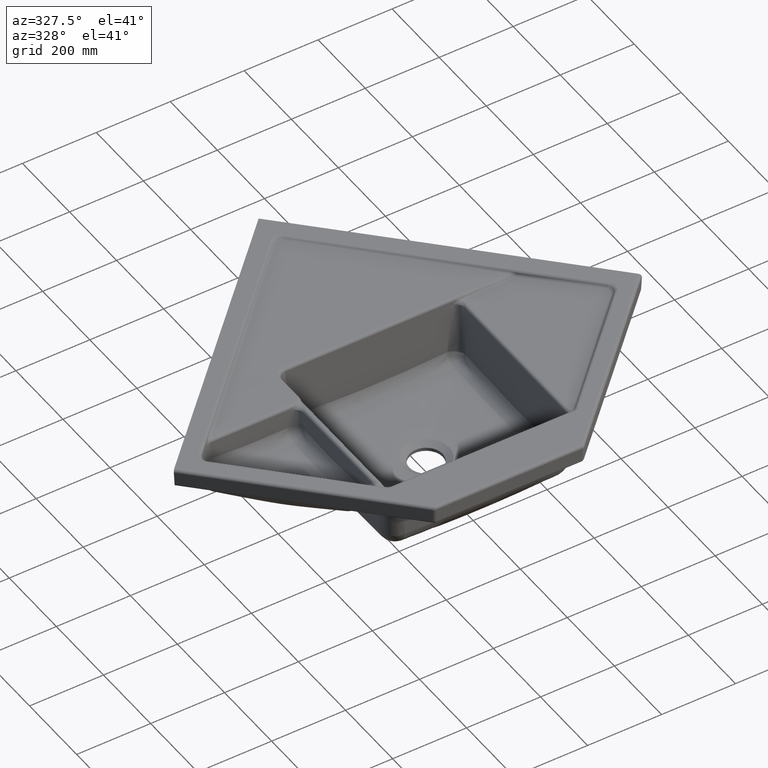
[diagram: clean part render]
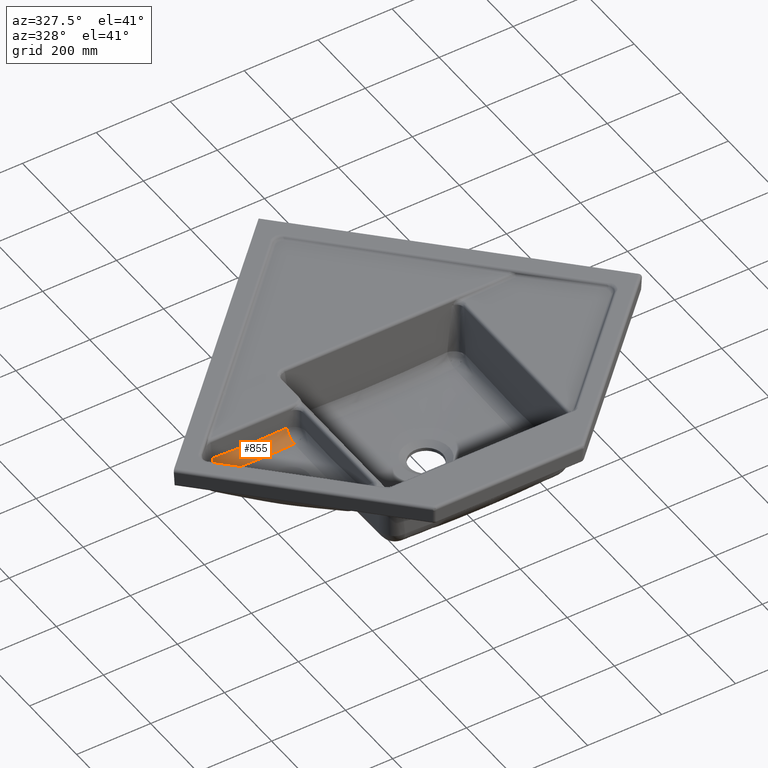
[diagram: same view with one face highlighted and labeled with its STEP entity id]
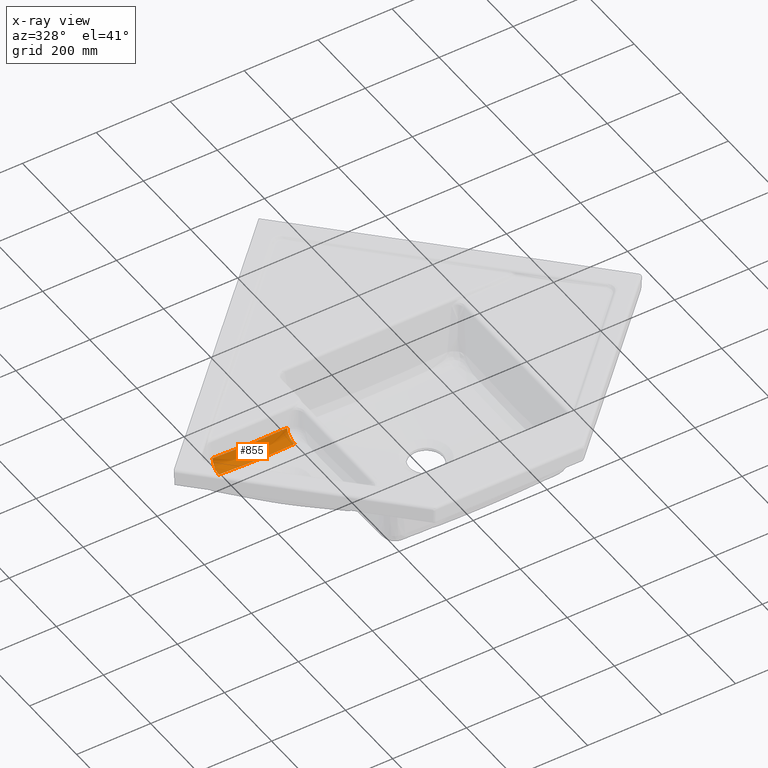
[diagram: x-ray of the same camera — body ghosted, the highlighted face saturated]
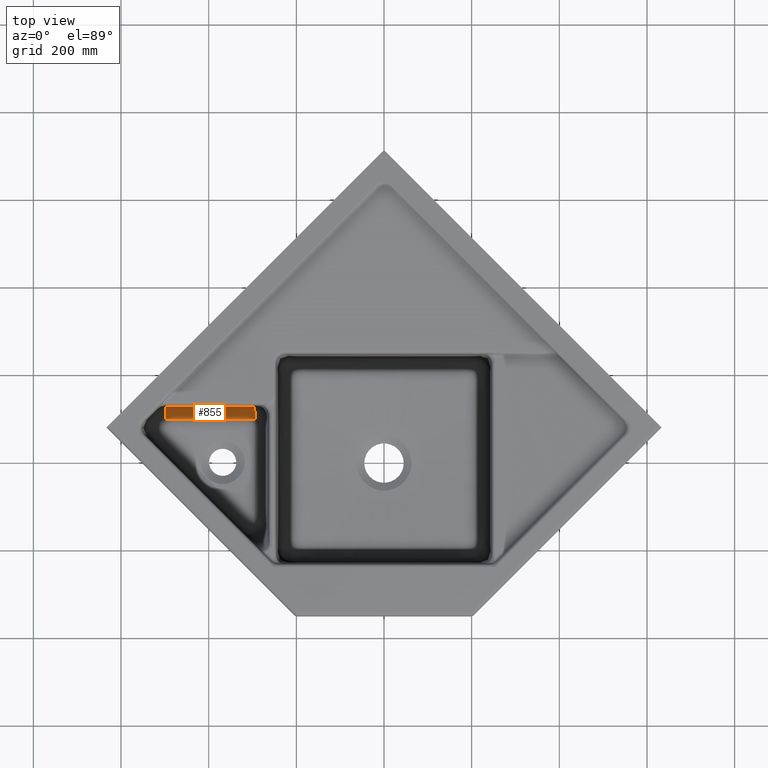
[diagram: same view with one face highlighted and labeled with its STEP entity id]
A machine part, auxiliary view. The second image highlights one B-rep face of the part: STEP entity #855.
The next image is the same camera in x-ray: the body ghosted, the highlighted face saturated — about 0% of this face is hidden behind the body in this view.
A second angle (top view) of the same face is appended — the face is thin or edge-on in the first view.
In plain terms, the highlighted face is a freeform B-spline surface patch.
Its self-contained STEP definition (entity closure, byte-faithful):
#855=ADVANCED_FACE('',(#1428),#1099,.F.);
#1099=(
BOUNDED_SURFACE()
B_SPLINE_SURFACE(3,2,((#34957,#34958,#34959),(#34960,#34961,#34962),(#34963,
#34964,#34965),(#34966,#34967,#34968),(#34969,#34970,#34971),(#34972,#34973,
#34974),(#34975,#34976,#34977),(#34978,#34979,#34980),(#34981,#34982,#34983),
(#34984,#34985,#34986),(#34987,#34988,#34989),(#34990,#34991,#34992)),
 .UNSPECIFIED.,.F.,.F.,.F.)
B_SPLINE_SURFACE_WITH_KNOTS((4,2,2,2,2,4),(3,3),(0.,0.25,0.375,0.5,0.75,
1.),(0.,1.),.UNSPECIFIED.)
GEOMETRIC_REPRESENTATION_ITEM()
RATIONAL_B_SPLINE_SURFACE(((1.,0.744119119800803,1.),(1.,0.745678358849743,
1.),(1.,0.747413035936206,1.),(1.,0.74877105718162,1.),(1.,0.749001886722056,
1.),(1.,0.748893356631566,1.),(1.,0.748555685656762,1.),(1.,0.746960610311758,
1.),(1.,0.745213075806759,1.),(1.,0.742082458033572,1.),(1.,0.740649148031611,
1.),(1.,0.739483774755505,1.)))
REPRESENTATION_ITEM('')
SURFACE()
);
#1428=FACE_OUTER_BOUND('',#1828,.T.);
#1828=EDGE_LOOP('',(#3407,#3408,#3409,#3410));
#3407=ORIENTED_EDGE('',*,*,#5166,.T.);
#3408=ORIENTED_EDGE('',*,*,#5140,.F.);
#3409=ORIENTED_EDGE('',*,*,#5136,.F.);
#3410=ORIENTED_EDGE('',*,*,#5167,.F.);
#4357=VERTEX_POINT('',#29791);
#4364=VERTEX_POINT('',#30026);
#4366=VERTEX_POINT('',#30039);
#4384=VERTEX_POINT('',#34904);
#5136=EDGE_CURVE('',#4357,#4364,#5719,.T.);
#5140=EDGE_CURVE('',#4364,#4366,#5723,.T.);
#5166=EDGE_CURVE('',#4384,#4366,#5742,.T.);
#5167=EDGE_CURVE('',#4384,#4357,#5743,.T.);
#5719=B_SPLINE_CURVE_WITH_KNOTS('',3,(#29964,#29965,#29966,#29967,#29968,
#29969,#29970,#29971,#29972,#29973,#29974,#29975,#29976,#29977,#29978,#29979,
#29980,#29981,#29982,#29983,#29984,#29985,#29986,#29987,#29988,#29989,#29990,
#29991,#29992,#29993,#29994,#29995,#29996,#29997,#29998,#29999,#30000,#30001,
#30002,#30003,#30004,#30005,#30006,#30007,#30008,#30009,#30010,#30011,#30012,
#30013,#30014,#30015,#30016,#30017,#30018,#30019,#30020,#30021,#30022,#30023,
#30024,#30025),.UNSPECIFIED.,.F.,.F.,(4,2,2,2,2,2,2,2,2,2,2,2,2,2,2,2,2,
2,2,2,2,2,2,2,2,2,2,2,2,2,4),(0.,0.0624999999999958,0.0937499999999937,
0.109374999999993,0.117187499999992,0.124999999999992,0.187499999999989,
0.218749999999987,0.234374999999987,0.249999999999986,0.374999999999985,
0.437499999999985,0.468749999999984,0.484374999999983,0.499999999999983,
0.562499999999984,0.593749999999984,0.609374999999985,0.617187499999985,
0.624999999999986,0.687499999999988,0.718749999999988,0.734374999999989,
0.742187499999989,0.749999999999989,0.812499999999992,0.843749999999993,
0.859374999999994,0.867187499999994,0.874999999999995,1.),.UNSPECIFIED.);
#5723=B_SPLINE_CURVE_WITH_KNOTS('',3,(#30089,#30090,#30091,#30092,#30093,
#30094,#30095,#30096,#30097,#30098,#30099,#30100,#30101,#30102,#30103,#30104,
#30105,#30106,#30107,#30108,#30109,#30110,#30111,#30112,#30113,#30114,#30115,
#30116,#30117,#30118,#30119,#30120,#30121,#30122,#30123,#30124,#30125,#30126,
#30127,#30128,#30129,#30130,#30131,#30132,#30133,#30134,#30135,#30136,#30137),
 .UNSPECIFIED.,.F.,.F.,(4,1,2,2,2,2,2,1,2,2,2,2,2,1,2,2,2,2,1,2,1,2,2,2,
2,2,4),(0.,0.0625,0.125,0.1875,0.21875,0.234375,0.25,0.3125,0.375,0.4375,
0.453125,0.46875,0.5,0.5625,0.625,0.65625,0.6875,0.703125,0.71875,0.75,
0.8125,0.875,0.90625,0.9375,0.96875,0.984375,1.),.UNSPECIFIED.);
#5742=B_SPLINE_CURVE_WITH_KNOTS('',3,(#34892,#34893,#34894,#34895,#34896,
#34897,#34898,#34899,#34900,#34901,#34902,#34903),.UNSPECIFIED.,.F.,.F.,
(4,2,2,2,2,4),(0.,0.245098199390676,0.371917691504666,0.498737183618657,
0.752376167846638,1.),.UNSPECIFIED.);
#5743=B_SPLINE_CURVE_WITH_KNOTS('',3,(#34905,#34906,#34907,#34908,#34909,
#34910,#34911,#34912,#34913,#34914,#34915,#34916,#34917,#34918,#34919,#34920,
#34921,#34922,#34923,#34924,#34925,#34926,#34927,#34928,#34929,#34930,#34931,
#34932,#34933,#34934,#34935,#34936,#34937,#34938,#34939,#34940,#34941,#34942,
#34943,#34944,#34945,#34946,#34947,#34948,#34949,#34950,#34951,#34952,#34953,
#34954,#34955,#34956),.UNSPECIFIED.,.F.,.F.,(4,2,2,2,2,2,1,2,1,2,2,2,2,
1,2,2,2,2,2,1,2,2,2,2,2,2,2,4),(0.,0.015625,0.03125,0.0625,0.09375,0.125,
0.1875,0.25,0.28125,0.296875,0.3125,0.34375,0.375,0.4375,0.5,0.53125,0.546875,
0.5625,0.625,0.6875,0.75,0.765625,0.78125,0.8125,0.875,0.9375,0.96875,1.),
 .UNSPECIFIED.);
#29791=CARTESIAN_POINT('',(-293.897954945389,97.9462854937264,105.092020084405));
#29964=CARTESIAN_POINT('',(-293.897956468863,97.9462919215301,105.092023917872));
#29965=CARTESIAN_POINT('',(-298.310859203766,97.9730263696273,104.907335417624));
#29966=CARTESIAN_POINT('',(-302.631707351253,98.0003447578445,104.737223935248));
#29967=CARTESIAN_POINT('',(-309.001821053526,98.0404332002045,104.503922238492));
#29968=CARTESIAN_POINT('',(-311.106758757533,98.0536734002227,104.429799260708));
#29969=CARTESIAN_POINT('',(-314.24076240354,98.073189145441,104.324081175734));
#29970=CARTESIAN_POINT('',(-315.281536170326,98.0796364564324,104.289752877693));
#29971=CARTESIAN_POINT('',(-316.837444774917,98.0891897956289,104.239627026057));
#29972=CARTESIAN_POINT('',(-317.355206044335,98.0923545308263,104.223146174749));
#29973=CARTESIAN_POINT('',(-318.389081834105,98.0986379125778,104.190640003942));
#29974=CARTESIAN_POINT('',(-318.873087929818,98.1015639420768,104.175598947783));
#29975=CARTESIAN_POINT('',(-323.800162930043,98.1311222924101,104.024562595369));
#29976=CARTESIAN_POINT('',(-328.099343020868,98.1533646590013,103.907340334424));
#29977=CARTESIAN_POINT('',(-334.487646840133,98.1861673278754,103.757055354806));
#29978=CARTESIAN_POINT('',(-336.607148558801,98.1969058358597,103.711218430233));
#29979=CARTESIAN_POINT('',(-339.780264819782,98.2121747349926,103.648850146324));
#29980=CARTESIAN_POINT('',(-340.836955752237,98.2171143180097,103.629125235513));
#29981=CARTESIAN_POINT('',(-342.949862813279,98.2264660225883,103.591804448207));
#29982=CARTESIAN_POINT('',(-343.975409412324,98.2307628831113,103.57468834001));
#29983=CARTESIAN_POINT('',(-353.76249773159,98.2676529851463,103.421588191299));
#29984=CARTESIAN_POINT('',(-362.184951697815,98.2838291734863,103.362019137619));
#29985=CARTESIAN_POINT('',(-375.094619839301,98.277273719222,103.38719056434));
#29986=CARTESIAN_POINT('',(-379.345032989329,98.2651120149834,103.414389931584));
#29987=CARTESIAN_POINT('',(-385.742693511545,98.2479794072975,103.483402319957));
#29988=CARTESIAN_POINT('',(-387.878871228384,98.242108233452,103.511108672332));
#29989=CARTESIAN_POINT('',(-391.100500230207,98.2322038913836,103.559721535272));
#29990=CARTESIAN_POINT('',(-392.177263696159,98.2287009236251,103.577101378648));
#29991=CARTESIAN_POINT('',(-394.338463610721,98.2209369061391,103.614212176858));
#29992=CARTESIAN_POINT('',(-395.461168029097,98.2165039992822,103.634677665005));
#29993=CARTESIAN_POINT('',(-400.715772589831,98.192944024574,103.735537551266));
#29994=CARTESIAN_POINT('',(-404.925104356554,98.1695401744548,103.832721588671));
#29995=CARTESIAN_POINT('',(-411.311863625541,98.1341308794595,104.003241837376));
#29996=CARTESIAN_POINT('',(-413.452785207273,98.122126432112,104.064205952377));
#29997=CARTESIAN_POINT('',(-416.689027708441,98.1035772458763,104.161838173027));
#29998=CARTESIAN_POINT('',(-417.771910115661,98.0972980407804,104.195413254602));
#29999=CARTESIAN_POINT('',(-419.403217018645,98.0876621130074,104.247322389002));
#30000=CARTESIAN_POINT('',(-419.948149338013,98.0844136995546,104.264883185808));
#30001=CARTESIAN_POINT('',(-421.040464488098,98.0778291809653,104.300520283432));
#30002=CARTESIAN_POINT('',(-421.62352808722,98.0742727338439,104.319788877668));
#30003=CARTESIAN_POINT('',(-426.240412120645,98.0457628303852,104.474064712339));
#30004=CARTESIAN_POINT('',(-430.404461855443,98.0195254305052,104.625326825804));
#30005=CARTESIAN_POINT('',(-436.771483730892,97.9796543160611,104.873412053308));
#30006=CARTESIAN_POINT('',(-438.913886635466,97.9662722236319,104.959639138693));
#30007=CARTESIAN_POINT('',(-442.16060855724,97.9462652152391,105.094277781097));
#30008=CARTESIAN_POINT('',(-443.248363376966,97.9396087493518,105.140040330953));
#30009=CARTESIAN_POINT('',(-444.888597886878,97.9296860971929,105.210008659318));
#30010=CARTESIAN_POINT('',(-445.436776119866,97.9263890332772,105.233552186037));
#30011=CARTESIAN_POINT('',(-446.536050819057,97.9198249936322,105.281080740668));
#30012=CARTESIAN_POINT('',(-447.135622465468,97.9162731993995,105.307189224592));
#30013=CARTESIAN_POINT('',(-451.672566669441,97.8896164944961,105.505930127069));
#30014=CARTESIAN_POINT('',(-455.799214407417,97.867201235149,105.695007364941));
#30015=CARTESIAN_POINT('',(-462.143592289458,97.8336915972774,105.997251208588));
#30016=CARTESIAN_POINT('',(-464.284064249966,97.8225770778811,106.101103820943));
#30017=CARTESIAN_POINT('',(-467.534550932489,97.8061513556856,106.261539736185));
#30018=CARTESIAN_POINT('',(-468.624673380497,97.800720146462,106.315794540717));
#30019=CARTESIAN_POINT('',(-470.269930064377,97.792688540797,106.398340996693));
#30020=CARTESIAN_POINT('',(-470.820027629427,97.7900307486633,106.426050523548));
#30021=CARTESIAN_POINT('',(-471.923600289991,97.7847647382978,106.481857660317));
#30022=CARTESIAN_POINT('',(-472.532000097711,97.7819015521669,106.512754235429));
#30023=CARTESIAN_POINT('',(-481.036226709466,97.7424240075672,106.94612990161));
#30024=CARTESIAN_POINT('',(-489.46680082388,97.708245752683,107.397992508908));
#30025=CARTESIAN_POINT('',(-498.34947520494,97.6791707944308,107.893834743569));
#30026=CARTESIAN_POINT('',(-498.349475578189,97.6791685523879,107.893828203688));
#30039=CARTESIAN_POINT('',(-496.968856342351,126.383981741739,136.267170698979));
#30089=CARTESIAN_POINT('',(-498.349475231219,97.679165770817,107.893834534382));
#30090=CARTESIAN_POINT('',(-498.353735498206,98.6094675072475,107.93308355056));
#30091=CARTESIAN_POINT('',(-498.357360583177,100.451758484638,108.097242596987));
#30092=CARTESIAN_POINT('',(-498.351522173147,102.258595191376,108.42698802322));
#30093=CARTESIAN_POINT('',(-498.340990705041,104.047858900109,108.838850819535));
#30094=CARTESIAN_POINT('',(-498.333378630601,104.933703421883,109.08583741012));
#30095=CARTESIAN_POINT('',(-498.318380441771,106.249062376334,109.518959851224));
#30096=CARTESIAN_POINT('',(-498.312783425849,106.685277202261,109.673790873868));
#30097=CARTESIAN_POINT('',(-498.3034749349,107.336180267488,109.922012088585));
#30098=CARTESIAN_POINT('',(-498.300215269245,107.55285864477,110.007533820653));
#30099=CARTESIAN_POINT('',(-498.293417258237,107.983247938683,110.183214075667));
#30100=CARTESIAN_POINT('',(-498.289878587458,108.197017347814,110.273385724049));
#30101=CARTESIAN_POINT('',(-498.271494142587,109.25881203932,110.735780785028));
#30102=CARTESIAN_POINT('',(-498.237665282577,110.912642709012,111.549294375734));
#30103=CARTESIAN_POINT('',(-498.195227977198,112.478627048737,112.506514194626));
#30104=CARTESIAN_POINT('',(-498.148484678596,114.000670155726,113.535616684324));
#30105=CARTESIAN_POINT('',(-498.122960331321,114.739724140346,114.086104279236));
#30106=CARTESIAN_POINT('',(-498.088293456565,115.635362034996,114.820312250018));
#30107=CARTESIAN_POINT('',(-498.0812217236,115.813077716278,114.969463542094));
#30108=CARTESIAN_POINT('',(-498.066798595075,116.16565521483,115.272434710956));
#30109=CARTESIAN_POINT('',(-498.059451059862,116.340407651838,115.42617162918));
#30110=CARTESIAN_POINT('',(-498.03710428713,116.857662177066,115.891974812491));
#30111=CARTESIAN_POINT('',(-498.021764755812,117.194063702082,116.209394757513));
#30112=CARTESIAN_POINT('',(-497.974444666304,118.178413592701,117.181940942421));
#30113=CARTESIAN_POINT('',(-497.907886040016,119.424705629515,118.532680686752));
#30114=CARTESIAN_POINT('',(-497.834509615177,120.540798042278,119.989689135882));
#30115=CARTESIAN_POINT('',(-497.776897444758,121.328599874925,121.122657500986));
#30116=CARTESIAN_POINT('',(-497.757262743824,121.582976466982,121.507026052429));
#30117=CARTESIAN_POINT('',(-497.717119807798,122.075047753289,122.289378891048));
#30118=CARTESIAN_POINT('',(-497.696596000122,122.312912729614,122.687664110566));
#30119=CARTESIAN_POINT('',(-497.665190123491,122.656406056878,123.294576619222));
#30120=CARTESIAN_POINT('',(-497.654651632845,122.768323744329,123.497814720105));
#30121=CARTESIAN_POINT('',(-497.633436431284,122.987054703845,123.906138600278));
#30122=CARTESIAN_POINT('',(-497.601406269221,123.307493437526,124.521396329997));
#30123=CARTESIAN_POINT('',(-497.568759968006,123.605178416229,125.144890384273));
#30124=CARTESIAN_POINT('',(-497.502656985244,124.170621375161,126.402711362946));
#30125=CARTESIAN_POINT('',(-497.412361859974,124.844858139697,128.108650887835));
#30126=CARTESIAN_POINT('',(-497.317784290977,125.360946092135,129.871836565988));
#30127=CARTESIAN_POINT('',(-497.245216535202,125.687647753318,131.216076283698));
#30128=CARTESIAN_POINT('',(-497.220754420852,125.786471614566,131.667803715463));
#30129=CARTESIAN_POINT('',(-497.171274208449,125.96358709721,132.578690767283));
#30130=CARTESIAN_POINT('',(-497.146275269152,126.041761866565,133.037491683878));
#30131=CARTESIAN_POINT('',(-497.096076142925,126.176326917769,133.955997509963));
#30132=CARTESIAN_POINT('',(-497.070833260897,126.232896764471,134.416491726022));
#30133=CARTESIAN_POINT('',(-497.032753514444,126.30164399555,135.109098205131));
#30134=CARTESIAN_POINT('',(-497.020024361724,126.321875149413,135.340277890671));
#30135=CARTESIAN_POINT('',(-496.994494174308,126.356961857379,135.803259513507));
#30136=CARTESIAN_POINT('',(-496.981693139612,126.371817411482,136.035061450803));
#30137=CARTESIAN_POINT('',(-496.968856126844,126.383981955652,136.267174780686));
#34892=CARTESIAN_POINT('',(-295.668944901904,126.235155587164,133.427398500837));
#34893=CARTESIAN_POINT('',(-312.113370192555,126.198847289052,132.734594901651));
#34894=CARTESIAN_POINT('',(-328.558959779206,126.170381670627,132.19143854559));
#34895=CARTESIAN_POINT('',(-353.516942813223,126.149042607046,131.784264956617));
#34896=CARTESIAN_POINT('',(-362.027865904365,126.145648803915,131.719507335181));
#34897=CARTESIAN_POINT('',(-379.050905249585,126.147301255849,131.751037996396));
#34898=CARTESIAN_POINT('',(-387.563020734265,126.152342067561,131.8472224137));
#34899=CARTESIAN_POINT('',(-413.100949026383,126.178653928356,132.349282626038));
#34900=CARTESIAN_POINT('',(-430.128644204652,126.210926074837,132.965071864248));
#34901=CARTESIAN_POINT('',(-463.758068521819,126.289403377318,134.462507999772));
#34902=CARTESIAN_POINT('',(-480.364866967472,126.335129167275,135.335008048087));
#34903=CARTESIAN_POINT('',(-496.968856572088,126.383981527809,136.267166616951));
#34904=CARTESIAN_POINT('',(-295.668944989184,126.235155695672,133.427400571278));
#34905=CARTESIAN_POINT('',(-295.66894507686,126.23515580418,133.427402641738));
#34906=CARTESIAN_POINT('',(-295.65875822187,126.223097499731,133.197316486314));
#34907=CARTESIAN_POINT('',(-295.648533033116,126.208396991384,132.967521033713));
#34908=CARTESIAN_POINT('',(-295.628006052045,126.173715438691,132.50851128822));
#34909=CARTESIAN_POINT('',(-295.617704259727,126.153734394346,132.279296995329));
#34910=CARTESIAN_POINT('',(-295.586684073372,126.085876265012,131.592525487316));
#34911=CARTESIAN_POINT('',(-295.565850869932,126.030084183727,131.135839642856));
#34912=CARTESIAN_POINT('',(-295.52387881635,125.897424338766,130.224789641543));
#34913=CARTESIAN_POINT('',(-295.502717097223,125.820416254226,129.769959390309));
#34914=CARTESIAN_POINT('',(-295.460371836409,125.646420607586,128.868692608221));
#34915=CARTESIAN_POINT('',(-295.439156734232,125.549355041984,128.421561335799));
#34916=CARTESIAN_POINT('',(-295.375386122391,125.228455283749,127.090499889151));
#34917=CARTESIAN_POINT('',(-295.290025008034,124.721502995389,125.343261767133));
#34918=CARTESIAN_POINT('',(-295.204006132554,124.058631386477,123.650261024332));
#34919=CARTESIAN_POINT('',(-295.139242693654,123.502386432332,122.40106567736));
#34920=CARTESIAN_POINT('',(-295.106798562452,123.209469529774,121.78161432482));
#34921=CARTESIAN_POINT('',(-295.074259403841,122.894026806571,121.169998700863));
#34922=CARTESIAN_POINT('',(-295.052545297495,122.678674543551,120.764014096099));
#34923=CARTESIAN_POINT('',(-295.04166339614,122.568321280178,120.561639754587));
#34924=CARTESIAN_POINT('',(-295.009108892113,122.230881734768,119.959466012982));
#34925=CARTESIAN_POINT('',(-294.987533182545,121.997512031803,119.564704580136));
#34926=CARTESIAN_POINT('',(-294.944631503895,121.51427276285,118.78830258491));
#34927=CARTESIAN_POINT('',(-294.923305539135,121.264402911244,118.406662249654));
#34928=CARTESIAN_POINT('',(-294.859697520814,120.490356378947,117.281173794059));
#34929=CARTESIAN_POINT('',(-294.775871666727,119.393228090403,115.832263905743));
#34930=CARTESIAN_POINT('',(-294.694002286491,118.166839419857,114.486143278521));
#34931=CARTESIAN_POINT('',(-294.633347419564,117.197683979182,113.515807548102));
#34932=CARTESIAN_POINT('',(-294.613253853188,116.866391988644,113.198914982951));
#34933=CARTESIAN_POINT('',(-294.583304123027,116.356860153486,112.73359090115));
#34934=CARTESIAN_POINT('',(-294.573345042967,116.184776382956,112.580038914701));
#34935=CARTESIAN_POINT('',(-294.553590948556,115.838134316582,112.277829178778));
#34936=CARTESIAN_POINT('',(-294.543784502979,115.663385840909,112.128991909802));
#34937=CARTESIAN_POINT('',(-294.49510175331,114.782577619096,111.396030184888));
#34938=CARTESIAN_POINT('',(-294.457271627887,114.055365954566,110.84550713085));
#34939=CARTESIAN_POINT('',(-294.383790397246,112.556886615842,109.814447284052));
#34940=CARTESIAN_POINT('',(-294.312488459918,111.01434574569,108.853382470263));
#34941=CARTESIAN_POINT('',(-294.245548896437,109.383605241647,108.032429361301));
#34942=CARTESIAN_POINT('',(-294.205110765077,108.336105135572,107.56427014241));
#34943=CARTESIAN_POINT('',(-294.197093237944,108.125187831308,107.472889758594));
#34944=CARTESIAN_POINT('',(-294.181199870031,107.700488570492,107.294679705038));
#34945=CARTESIAN_POINT('',(-294.173331918615,107.486908242495,107.207942590258));
#34946=CARTESIAN_POINT('',(-294.150059945006,106.84513256909,106.955863066425));
#34947=CARTESIAN_POINT('',(-294.134950040834,106.414904392893,106.798224177307));
#34948=CARTESIAN_POINT('',(-294.090813248106,105.117211899811,106.356001455312));
#34949=CARTESIAN_POINT('',(-294.06297682529,104.242754035051,106.102048424952));
#34950=CARTESIAN_POINT('',(-294.010428799736,102.475481138198,105.67454429717));
#34951=CARTESIAN_POINT('',(-293.985717247163,101.582665811398,105.500994490534));
#34952=CARTESIAN_POINT('',(-293.951013874414,100.229555449506,105.30149460759));
#34953=CARTESIAN_POINT('',(-293.939839972239,99.7762030102473,105.245130200716));
#34954=CARTESIAN_POINT('',(-293.918293654999,98.8647913907272,105.153022972999));
#34955=CARTESIAN_POINT('',(-293.907921239934,98.4067322104661,105.117280152157));
#34956=CARTESIAN_POINT('',(-293.897956423236,97.9462819411648,105.092023363238));
#34957=CARTESIAN_POINT('',(-292.674049074596,97.9389086357264,105.143520611401));
#34958=CARTESIAN_POINT('',(-292.797810122834,124.8307019154,106.628826018314));
#34959=CARTESIAN_POINT('',(-293.949863060755,126.238979517167,133.500363431907));
#34960=CARTESIAN_POINT('',(-309.870809111016,98.0421927271823,104.41613080124));
#34961=CARTESIAN_POINT('',(-309.946465956861,124.798981607845,106.023566499223));
#34962=CARTESIAN_POINT('',(-310.967234137257,126.200848625565,132.772782677226));
#34963=CARTESIAN_POINT('',(-327.158726750835,98.1659350253552,103.843946132776));
#34964=CARTESIAN_POINT('',(-327.22527995487,124.775723022774,105.579766252631));
#34965=CARTESIAN_POINT('',(-327.985820162738,126.170871704726,132.200788953205));
#34966=CARTESIAN_POINT('',(-353.200741885461,98.2662211537726,103.427422136072));
#34967=CARTESIAN_POINT('',(-353.229898979362,124.759233426736,105.265126017529));
#34968=CARTESIAN_POINT('',(-353.516942813223,126.149042607046,131.784264956617));
#34969=CARTESIAN_POINT('',(-361.898108517781,98.2836117675825,103.362664514723));
#34970=CARTESIAN_POINT('',(-361.912823110654,124.756741964829,105.21758609053));
#34971=CARTESIAN_POINT('',(-362.027865904365,126.145648803915,131.719507335181));
#34972=CARTESIAN_POINT('',(-379.291119849977,98.2754968312233,103.394195175841));
#34973=CARTESIAN_POINT('',(-379.265665654067,124.757967973816,105.240979738643));
#34974=CARTESIAN_POINT('',(-379.050905249585,126.147301255849,131.751037996396));
#34975=CARTESIAN_POINT('',(-387.985536281517,98.2501404949975,103.490379593157));
#34976=CARTESIAN_POINT('',(-387.94598312265,124.761687708763,105.311956507887));
#34977=CARTESIAN_POINT('',(-387.563020734265,126.152342067561,131.8472224137));
#34978=CARTESIAN_POINT('',(-414.014744101092,98.1330773095741,103.992439805603));
#34979=CARTESIAN_POINT('',(-413.943654101244,124.781723122266,105.694254972127));
#34980=CARTESIAN_POINT('',(-413.100949026383,126.178653928356,132.349282626038));
#34981=CARTESIAN_POINT('',(-431.28726405775,98.0085979690496,104.608229043731));
#34982=CARTESIAN_POINT('',(-431.207217133012,124.807111477575,106.178693651266));
#34983=CARTESIAN_POINT('',(-430.128644204652,126.210926074837,132.965071864248));
#34984=CARTESIAN_POINT('',(-465.660601754763,97.8082643775608,106.123634407758));
#34985=CARTESIAN_POINT('',(-465.558195422972,124.873964916416,107.454333252616));
#34986=CARTESIAN_POINT('',(-464.1616214981,126.290345104678,134.480477228254));
#34987=CARTESIAN_POINT('',(-482.775071031422,97.728759090819,107.020594411739));
#34988=CARTESIAN_POINT('',(-482.659769579817,124.915209647973,108.241329617354));
#34989=CARTESIAN_POINT('',(-481.17167113392,126.337354768253,135.377475044572));
#34990=CARTESIAN_POINT('',(-499.860458884995,97.6742892782894,107.978358922088));
#34991=CARTESIAN_POINT('',(-499.716430660009,124.96052419274,109.10598263736));
#34992=CARTESIAN_POINT('',(-498.178858636515,126.387547097657,136.335201742594));